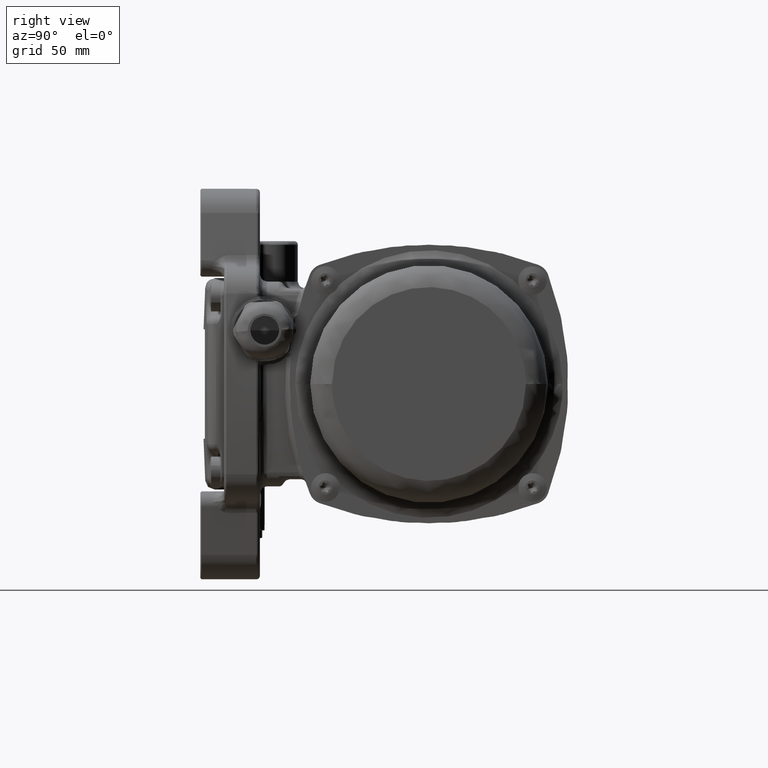
[diagram: clean part render]
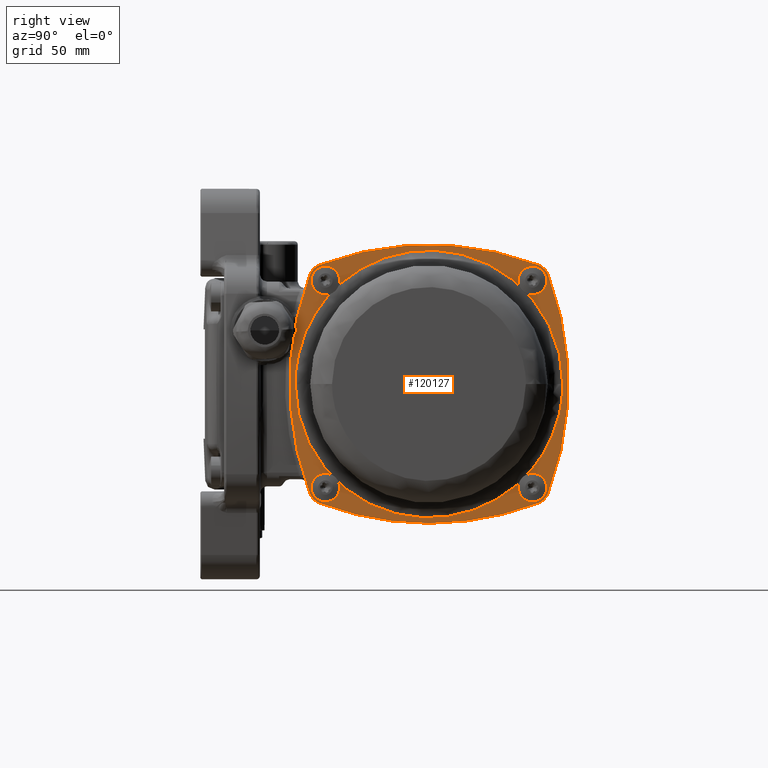
[diagram: same view with one face highlighted and labeled with its STEP entity id]
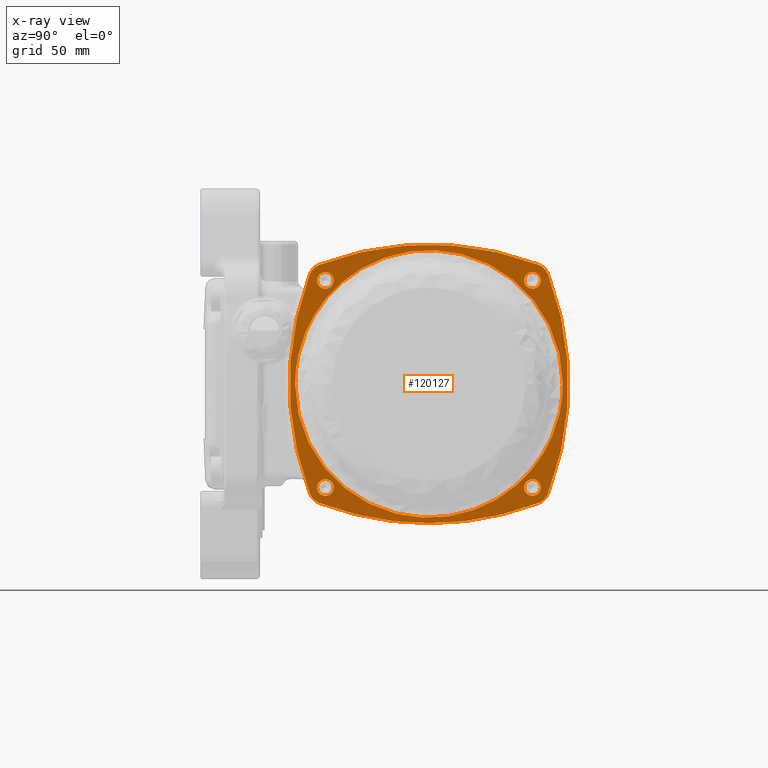
[diagram: x-ray of the same camera — body ghosted, the highlighted face saturated]
A machine part, right view. The second image highlights one B-rep face of the part: STEP entity #120127.
The next image is the same camera in x-ray: the body ghosted, the highlighted face saturated — about 0% of this face is hidden behind the body in this view.
In plain terms, the highlighted planar face has unit normal (-1, -0, -0).
Its self-contained STEP definition (entity closure, byte-faithful):
#368 = CARTESIAN_POINT ( 'NONE',  ( 60.70000000000020200, 152.2000000000002400, -112.4000000000004200 ) ) ;
#1161 = CARTESIAN_POINT ( 'NONE',  ( 60.69999999999999600, 139.4870670429722000, -39.98706704297299600 ) ) ;
#2158 = VERTEX_POINT ( 'NONE', #60533 ) ;
#5048 = VERTEX_POINT ( 'NONE', #128059 ) ;
#5423 = CARTESIAN_POINT ( 'NONE',  ( 60.69999999999999600, 141.9816342187540100, -50.02671618596749400 ) ) ;
#6057 = CIRCLE ( 'NONE', #34123, 3.500000000000003100 ) ;
#6459 = CARTESIAN_POINT ( 'NONE',  ( 60.69999999999999600, 152.1999999999999900, -2.653505928439075100E-013 ) ) ;
#10565 = DIRECTION ( 'NONE',  ( -1.623606903729764900E-017, 1.000000000000000000, 2.750195021051175000E-016 ) ) ;
#10628 = DIRECTION ( 'NONE',  ( 0.0000000000000000000, 0.0000000000000000000, -1.000000000000000000 ) ) ;
#11133 = DIRECTION ( 'NONE',  ( -1.000000000000000000, 7.494005416219800700E-016, 8.164311994315690300E-016 ) ) ;
#11645 = EDGE_CURVE ( 'NONE', #114021, #22102, #121909, .T. ) ;
#11827 = DIRECTION ( 'NONE',  ( 0.0000000000000000000, 0.0000000000000000000, -1.000000000000000000 ) ) ;
#11844 = DIRECTION ( 'NONE',  ( -1.000000000000000000, 7.494005416219810600E-016, 9.418464148643029900E-032 ) ) ;
#12749 = DIRECTION ( 'NONE',  ( 0.0000000000000000000, 0.0000000000000000000, -1.000000000000000000 ) ) ;
#12942 = EDGE_CURVE ( 'NONE', #137392, #72783, #6057, .T. ) ;
#14245 = CARTESIAN_POINT ( 'NONE',  ( 60.69999999999999600, 25.50000000000000000, -2.933130487494180100E-013 ) ) ;
#16736 = FACE_BOUND ( 'NONE', #131109, .T. ) ;
#17582 = CIRCLE ( 'NONE', #31198, 3.500000000000003100 ) ;
#18503 = FACE_OUTER_BOUND ( 'NONE', #38367, .T. ) ;
#22090 = DIRECTION ( 'NONE',  ( -1.000000000000000000, 7.494005416219810600E-016, 9.418464148643029900E-032 ) ) ;
#22102 = VERTEX_POINT ( 'NONE', #119046 ) ;
#22266 = AXIS2_PLACEMENT_3D ( 'NONE', #117698, #11844, #153742 ) ;
#26545 = VERTEX_POINT ( 'NONE', #45165 ) ;
#27926 = VERTEX_POINT ( 'NONE', #134173 ) ;
#28267 = EDGE_CURVE ( 'NONE', #116364, #114021, #147635, .T. ) ;
#29215 = ORIENTED_EDGE ( 'NONE', *, *, #86708, .F. ) ;
#29796 =( BOUNDED_CURVE ( )  B_SPLINE_CURVE ( 3, ( #6459, #100818, #52360, #89323 ),
 .UNSPECIFIED., .F., .F. ) 
 B_SPLINE_CURVE_WITH_KNOTS ( ( 4, 4 ),
 ( 0.0000000000000000000, 1.000000000000000000 ),
 .UNSPECIFIED. ) 
 CURVE ( )  GEOMETRIC_REPRESENTATION_ITEM ( )  RATIONAL_B_SPLINE_CURVE ( ( 1.000000000000000000, 0.3333333333333324800, 0.3333333333333324800, 1.000000000000000000 ) ) 
 REPRESENTATION_ITEM ( '' )  );
#30249 = DIRECTION ( 'NONE',  ( 0.0000000000000000000, 0.0000000000000000000, -1.000000000000000000 ) ) ;
#31094 = VERTEX_POINT ( 'NONE', #128034 ) ;
#31198 = AXIS2_PLACEMENT_3D ( 'NONE', #140637, #129674, #129135 ) ;
#31895 = ORIENTED_EDGE ( 'NONE', *, *, #12942, .T. ) ;
#34123 = AXIS2_PLACEMENT_3D ( 'NONE', #154550, #22090, #82023 ) ;
#34709 = EDGE_CURVE ( 'NONE', #72783, #137392, #81507, .T. ) ;
#34912 = ORIENTED_EDGE ( 'NONE', *, *, #133118, .T. ) ;
#35139 = CARTESIAN_POINT ( 'NONE',  ( 60.69999999999999600, 139.4870670429719700, 43.48706704297279700 ) ) ;
#35295 = FACE_BOUND ( 'NONE', #126807, .T. ) ;
#35318 = CARTESIAN_POINT ( 'NONE',  ( 60.70000000000001000, 39.80000000000003300, -112.4000000000005500 ) ) ;
#35628 = ORIENTED_EDGE ( 'NONE', *, *, #63669, .T. ) ;
#37279 = CARTESIAN_POINT ( 'NONE',  ( 60.69999999999999600, 50.01836578124559900, 50.02671618596699700 ) ) ;
#37780 = CIRCLE ( 'NONE', #139048, 129.0000000000000000 ) ;
#38367 = EDGE_LOOP ( 'NONE', ( #106883, #112338, #77398, #104865, #128354, #44055, #83304, #43958, #29215 ) ) ;
#38605 = CARTESIAN_POINT ( 'NONE',  ( 60.69999999999999600, 96.00000000000009900, -58.50000000000000700 ) ) ;
#38774 = DIRECTION ( 'NONE',  ( -1.000000000000000000, 7.494005416219810600E-016, 9.418464148643029900E-032 ) ) ;
#38781 = VERTEX_POINT ( 'NONE', #149800 ) ;
#39123 = AXIS2_PLACEMENT_3D ( 'NONE', #90725, #55257, #30249 ) ;
#39655 = CARTESIAN_POINT ( 'NONE',  ( 60.69999999999999600, 139.4865067805270100, 43.48650678052684500 ) ) ;
#41128 = AXIS2_PLACEMENT_3D ( 'NONE', #14245, #38774, #85177 ) ;
#41673 = VERTEX_POINT ( 'NONE', #1161 ) ;
#43483 = AXIS2_PLACEMENT_3D ( 'NONE', #52416, #109630, #126803 ) ;
#43958 = ORIENTED_EDGE ( 'NONE', *, *, #28267, .F. ) ;
#44055 = ORIENTED_EDGE ( 'NONE', *, *, #89451, .F. ) ;
#44314 = CARTESIAN_POINT ( 'NONE',  ( 60.69999999999999600, 96.00000000000000000, 70.50000000000000000 ) ) ;
#44855 = CIRCLE ( 'NONE', #22266, 6.999999999999999100 ) ;
#45165 = CARTESIAN_POINT ( 'NONE',  ( 60.69999999999999600, 146.0267161859670200, 45.98163421875379700 ) ) ;
#47816 = CARTESIAN_POINT ( 'NONE',  ( 60.69999999999999600, 152.1999999999999900, -2.653505928439075100E-013 ) ) ;
#48813 = CIRCLE ( 'NONE', #41128, 129.0000000000000000 ) ;
#49407 =( BOUNDED_CURVE ( )  B_SPLINE_CURVE ( 3, ( #82740, #35318, #368, #47816 ),
 .UNSPECIFIED., .F., .F. ) 
 B_SPLINE_CURVE_WITH_KNOTS ( ( 4, 4 ),
 ( 0.0000000000000000000, 1.000000000000000000 ),
 .UNSPECIFIED. ) 
 CURVE ( )  GEOMETRIC_REPRESENTATION_ITEM ( )  RATIONAL_B_SPLINE_CURVE ( ( 1.000000000000000000, 0.3333333333333327600, 0.3333333333333327600, 1.000000000000000000 ) ) 
 REPRESENTATION_ITEM ( '' )  );
#51089 = DIRECTION ( 'NONE',  ( -1.000000000000000000, 7.494005416219810600E-016, 9.418464148643029900E-032 ) ) ;
#51929 = CIRCLE ( 'NONE', #59262, 3.500000000000003100 ) ;
#52360 = CARTESIAN_POINT ( 'NONE',  ( 60.69999999999999600, 39.79999999999946400, 112.3999999999997800 ) ) ;
#52416 = CARTESIAN_POINT ( 'NONE',  ( 60.69999999999999600, 52.51349321947249400, -43.48650678052730000 ) ) ;
#53853 = EDGE_CURVE ( 'NONE', #2158, #26545, #77331, .T. ) ;
#54178 = DIRECTION ( 'NONE',  ( -1.000000000000000000, 7.494005416219810600E-016, 9.418464148643029900E-032 ) ) ;
#55257 = DIRECTION ( 'NONE',  ( -1.000000000000000000, 7.494005416219810600E-016, 9.418464148643029900E-032 ) ) ;
#59262 = AXIS2_PLACEMENT_3D ( 'NONE', #153447, #92385, #128932 ) ;
#60533 = CARTESIAN_POINT ( 'NONE',  ( 60.69999999999999600, 141.9816342187540100, 50.02671618596689700 ) ) ;
#61528 = DIRECTION ( 'NONE',  ( 0.0000000000000000000, -2.151595008963481500E-016, -1.000000000000000000 ) ) ;
#62185 = CIRCLE ( 'NONE', #75304, 3.500000000000003100 ) ;
#63169 = FACE_BOUND ( 'NONE', #149374, .T. ) ;
#63669 = EDGE_CURVE ( 'NONE', #41673, #38781, #62185, .T. ) ;
#63731 = DIRECTION ( 'NONE',  ( 0.0000000000000000000, -2.151595008963481500E-016, -1.000000000000000000 ) ) ;
#64305 = CIRCLE ( 'NONE', #149092, 3.500000000000003100 ) ;
#64882 = AXIS2_PLACEMENT_3D ( 'NONE', #68909, #152485, #10565 ) ;
#65538 = CARTESIAN_POINT ( 'NONE',  ( 60.69999999999999600, 166.5000000000000000, -2.545352989525959900E-013 ) ) ;
#65725 = CARTESIAN_POINT ( 'NONE',  ( 60.69999999999999600, 50.01836578124559900, -50.02671618596740200 ) ) ;
#67403 = ORIENTED_EDGE ( 'NONE', *, *, #34709, .T. ) ;
#68909 = CARTESIAN_POINT ( 'NONE',  ( 60.69999999999999600, 154.5000000000000000, -2.578355329778575000E-013 ) ) ;
#71146 = DIRECTION ( 'NONE',  ( -1.000000000000000000, 7.494005416219800700E-016, -8.164311994315690300E-016 ) ) ;
#71635 = EDGE_CURVE ( 'NONE', #26545, #31094, #48813, .T. ) ;
#72783 = VERTEX_POINT ( 'NONE', #98307 ) ;
#75304 = AXIS2_PLACEMENT_3D ( 'NONE', #149087, #137622, #76045 ) ;
#76045 = DIRECTION ( 'NONE',  ( 0.0000000000000000000, 0.0000000000000000000, -1.000000000000000000 ) ) ;
#76499 = AXIS2_PLACEMENT_3D ( 'NONE', #39655, #51089, #123605 ) ;
#77009 = AXIS2_PLACEMENT_3D ( 'NONE', #83746, #83245, #11827 ) ;
#77088 = AXIS2_PLACEMENT_3D ( 'NONE', #119670, #71146, #12749 ) ;
#77331 = CIRCLE ( 'NONE', #76499, 6.999999999999999100 ) ;
#77398 = ORIENTED_EDGE ( 'NONE', *, *, #71635, .F. ) ;
#77405 = EDGE_CURVE ( 'NONE', #31094, #105021, #126228, .T. ) ;
#78891 = VERTEX_POINT ( 'NONE', #151853 ) ;
#80954 = PLANE ( 'NONE',  #64882 ) ;
#81507 = CIRCLE ( 'NONE', #77009, 3.500000000000003100 ) ;
#82023 = DIRECTION ( 'NONE',  ( 0.0000000000000000000, 0.0000000000000000000, -1.000000000000000000 ) ) ;
#82369 = CARTESIAN_POINT ( 'NONE',  ( 60.69999999999999600, 139.4870670429722000, -43.48706704297299600 ) ) ;
#82740 = CARTESIAN_POINT ( 'NONE',  ( 60.69999999999999600, 39.80000000000000400, -2.893802698693145400E-013 ) ) ;
#82979 = AXIS2_PLACEMENT_3D ( 'NONE', #65538, #87515, #136074 ) ;
#83245 = DIRECTION ( 'NONE',  ( -1.000000000000000000, 7.494005416219810600E-016, 9.418464148643029900E-032 ) ) ;
#83304 = ORIENTED_EDGE ( 'NONE', *, *, #11645, .F. ) ;
#83746 = CARTESIAN_POINT ( 'NONE',  ( 60.69999999999999600, 52.51293295702710400, 43.48706704297254800 ) ) ;
#84209 = VERTEX_POINT ( 'NONE', #37279 ) ;
#85177 = DIRECTION ( 'NONE',  ( 0.0000000000000000000, -2.420544385083916700E-016, -1.000000000000000000 ) ) ;
#86708 = EDGE_CURVE ( 'NONE', #108917, #116364, #37780, .T. ) ;
#87219 = EDGE_CURVE ( 'NONE', #84209, #2158, #132830, .T. ) ;
#87279 = ORIENTED_EDGE ( 'NONE', *, *, #100797, .F. ) ;
#87386 = CIRCLE ( 'NONE', #144517, 3.500000000000003100 ) ;
#87515 = DIRECTION ( 'NONE',  ( -1.000000000000000000, 7.494005416219810600E-016, 9.418464148643029900E-032 ) ) ;
#88940 = ORIENTED_EDGE ( 'NONE', *, *, #145993, .F. ) ;
#89323 = CARTESIAN_POINT ( 'NONE',  ( 60.69999999999999600, 39.80000000000000400, -2.893802698693145400E-013 ) ) ;
#89451 = EDGE_CURVE ( 'NONE', #22102, #84209, #44855, .T. ) ;
#90725 = CARTESIAN_POINT ( 'NONE',  ( 60.69999999999999600, 139.4865067805270100, -43.48650678052739200 ) ) ;
#92385 = DIRECTION ( 'NONE',  ( -1.000000000000000000, 7.494005416219800700E-016, -8.164311994315690300E-016 ) ) ;
#92481 = EDGE_CURVE ( 'NONE', #38781, #41673, #87386, .T. ) ;
#94461 = EDGE_LOOP ( 'NONE', ( #67403, #31895 ) ) ;
#94869 = DIRECTION ( 'NONE',  ( -1.000000000000000000, 7.494005416219810600E-016, 9.418464148643029900E-032 ) ) ;
#98307 = CARTESIAN_POINT ( 'NONE',  ( 60.69999999999999600, 52.51293295702710400, 39.98706704297254100 ) ) ;
#99069 = EDGE_CURVE ( 'NONE', #145856, #78891, #17582, .T. ) ;
#99268 = EDGE_CURVE ( 'NONE', #27926, #5048, #135084, .T. ) ;
#100549 = ORIENTED_EDGE ( 'NONE', *, *, #99268, .T. ) ;
#100753 = DIRECTION ( 'NONE',  ( -1.000000000000000000, 7.494005416219810600E-016, 9.418464148643029900E-032 ) ) ;
#100797 = EDGE_CURVE ( 'NONE', #153530, #142228, #29796, .T. ) ;
#100818 = CARTESIAN_POINT ( 'NONE',  ( 60.70000000000018800, 152.1999999999998200, 112.4000000000001500 ) ) ;
#102802 = CIRCLE ( 'NONE', #136077, 129.0000000000000000 ) ;
#104865 = ORIENTED_EDGE ( 'NONE', *, *, #53853, .F. ) ;
#105021 = VERTEX_POINT ( 'NONE', #5423 ) ;
#106879 = DIRECTION ( 'NONE',  ( 0.0000000000000000000, 0.0000000000000000000, -1.000000000000000000 ) ) ;
#106883 = ORIENTED_EDGE ( 'NONE', *, *, #110722, .F. ) ;
#108917 = VERTEX_POINT ( 'NONE', #38605 ) ;
#109630 = DIRECTION ( 'NONE',  ( -1.000000000000000000, 7.494005416219810600E-016, 9.418464148643029900E-032 ) ) ;
#110518 = DIRECTION ( 'NONE',  ( -1.000000000000000000, 7.494005416219810600E-016, 9.418464148643029900E-032 ) ) ;
#110722 = EDGE_CURVE ( 'NONE', #105021, #108917, #102802, .T. ) ;
#111180 = CARTESIAN_POINT ( 'NONE',  ( 60.69999999999999600, 45.97328381403239900, -45.98163421875450000 ) ) ;
#111225 = CARTESIAN_POINT ( 'NONE',  ( 60.69999999999999600, 96.00000000000000000, 70.50000000000000000 ) ) ;
#112338 = ORIENTED_EDGE ( 'NONE', *, *, #77405, .F. ) ;
#112986 = EDGE_CURVE ( 'NONE', #5048, #27926, #51929, .T. ) ;
#114021 = VERTEX_POINT ( 'NONE', #111180 ) ;
#116137 = CARTESIAN_POINT ( 'NONE',  ( 60.69999999999999600, 139.4870670429719700, 39.98706704297279700 ) ) ;
#116364 = VERTEX_POINT ( 'NONE', #65725 ) ;
#116888 = EDGE_LOOP ( 'NONE', ( #143444, #100549 ) ) ;
#117698 = CARTESIAN_POINT ( 'NONE',  ( 60.69999999999999600, 52.51349321947249400, 43.48650678052695200 ) ) ;
#119046 = CARTESIAN_POINT ( 'NONE',  ( 60.69999999999999600, 45.97328381403249900, 45.98163421875379700 ) ) ;
#119670 = CARTESIAN_POINT ( 'NONE',  ( 60.69999999999999600, 52.51293295702710400, -43.48706704297290300 ) ) ;
#120127 = ADVANCED_FACE ( 'NONE', ( #35295, #18503, #141736, #130485, #63169, #16736 ), #80954, .F. ) ;
#121909 = CIRCLE ( 'NONE', #82979, 129.0000000000000000 ) ;
#123001 = AXIS2_PLACEMENT_3D ( 'NONE', #133546, #110518, #61528 ) ;
#123368 = CARTESIAN_POINT ( 'NONE',  ( 60.69999999999999600, 152.1999999999999900, -2.653505928439075100E-013 ) ) ;
#123605 = DIRECTION ( 'NONE',  ( 0.0000000000000000000, 0.0000000000000000000, -1.000000000000000000 ) ) ;
#126228 = CIRCLE ( 'NONE', #39123, 6.999999999999999100 ) ;
#126803 = DIRECTION ( 'NONE',  ( 0.0000000000000000000, 0.0000000000000000000, -1.000000000000000000 ) ) ;
#126807 = EDGE_LOOP ( 'NONE', ( #87279, #88940 ) ) ;
#127767 = DIRECTION ( 'NONE',  ( 0.0000000000000000000, -2.151595008963481500E-016, -1.000000000000000000 ) ) ;
#128034 = CARTESIAN_POINT ( 'NONE',  ( 60.69999999999999600, 146.0267161859670200, -45.98163421875440100 ) ) ;
#128059 = CARTESIAN_POINT ( 'NONE',  ( 60.69999999999999600, 52.51293295702710400, -46.98706704297290300 ) ) ;
#128354 = ORIENTED_EDGE ( 'NONE', *, *, #87219, .F. ) ;
#128932 = DIRECTION ( 'NONE',  ( 0.0000000000000000000, 0.0000000000000000000, -1.000000000000000000 ) ) ;
#129135 = DIRECTION ( 'NONE',  ( 0.0000000000000000000, 0.0000000000000000000, -1.000000000000000000 ) ) ;
#129674 = DIRECTION ( 'NONE',  ( -1.000000000000000000, 7.494005416219800700E-016, 8.164311994315690300E-016 ) ) ;
#130485 = FACE_BOUND ( 'NONE', #116888, .T. ) ;
#131109 = EDGE_LOOP ( 'NONE', ( #148832, #34912 ) ) ;
#131977 = CARTESIAN_POINT ( 'NONE',  ( 60.69999999999999600, 39.80000000000000400, -2.893802698693145400E-013 ) ) ;
#132830 = CIRCLE ( 'NONE', #123001, 129.0000000000000000 ) ;
#133118 = EDGE_CURVE ( 'NONE', #78891, #145856, #64305, .T. ) ;
#133546 = CARTESIAN_POINT ( 'NONE',  ( 60.69999999999999600, 96.00000000000000000, -70.50000000000000000 ) ) ;
#134173 = CARTESIAN_POINT ( 'NONE',  ( 60.69999999999999600, 52.51293295702730300, -39.98706704297289600 ) ) ;
#135084 = CIRCLE ( 'NONE', #77088, 3.500000000000003100 ) ;
#136074 = DIRECTION ( 'NONE',  ( 0.0000000000000000000, -2.151595008963481500E-016, -1.000000000000000000 ) ) ;
#136077 = AXIS2_PLACEMENT_3D ( 'NONE', #44314, #54178, #127767 ) ;
#137392 = VERTEX_POINT ( 'NONE', #146266 ) ;
#137622 = DIRECTION ( 'NONE',  ( -1.000000000000000000, 7.494005416219810600E-016, 9.418464148643029900E-032 ) ) ;
#139048 = AXIS2_PLACEMENT_3D ( 'NONE', #111225, #100753, #63731 ) ;
#140637 = CARTESIAN_POINT ( 'NONE',  ( 60.69999999999999600, 139.4870670429719700, 43.48706704297279700 ) ) ;
#141736 = FACE_BOUND ( 'NONE', #94461, .T. ) ;
#142228 = VERTEX_POINT ( 'NONE', #131977 ) ;
#143444 = ORIENTED_EDGE ( 'NONE', *, *, #112986, .T. ) ;
#144517 = AXIS2_PLACEMENT_3D ( 'NONE', #82369, #94869, #106879 ) ;
#145856 = VERTEX_POINT ( 'NONE', #116137 ) ;
#145993 = EDGE_CURVE ( 'NONE', #142228, #153530, #49407, .T. ) ;
#146266 = CARTESIAN_POINT ( 'NONE',  ( 60.69999999999999600, 52.51293295702730300, 46.98706704297254800 ) ) ;
#147635 = CIRCLE ( 'NONE', #43483, 6.999999999999999100 ) ;
#148832 = ORIENTED_EDGE ( 'NONE', *, *, #99069, .T. ) ;
#149087 = CARTESIAN_POINT ( 'NONE',  ( 60.69999999999999600, 139.4870670429722000, -43.48706704297299600 ) ) ;
#149092 = AXIS2_PLACEMENT_3D ( 'NONE', #35139, #11133, #10628 ) ;
#149374 = EDGE_LOOP ( 'NONE', ( #154352, #35628 ) ) ;
#149800 = CARTESIAN_POINT ( 'NONE',  ( 60.69999999999999600, 139.4870670429722000, -46.98706704297300300 ) ) ;
#151853 = CARTESIAN_POINT ( 'NONE',  ( 60.69999999999999600, 139.4870670429719700, 46.98706704297279700 ) ) ;
#152485 = DIRECTION ( 'NONE',  ( -1.000000000000000000, -1.623606903729764900E-017, -1.624884507862492500E-030 ) ) ;
#153447 = CARTESIAN_POINT ( 'NONE',  ( 60.69999999999999600, 52.51293295702710400, -43.48706704297290300 ) ) ;
#153530 = VERTEX_POINT ( 'NONE', #123368 ) ;
#153742 = DIRECTION ( 'NONE',  ( 0.0000000000000000000, 0.0000000000000000000, -1.000000000000000000 ) ) ;
#154352 = ORIENTED_EDGE ( 'NONE', *, *, #92481, .T. ) ;
#154550 = CARTESIAN_POINT ( 'NONE',  ( 60.69999999999999600, 52.51293295702710400, 43.48706704297254800 ) ) ;